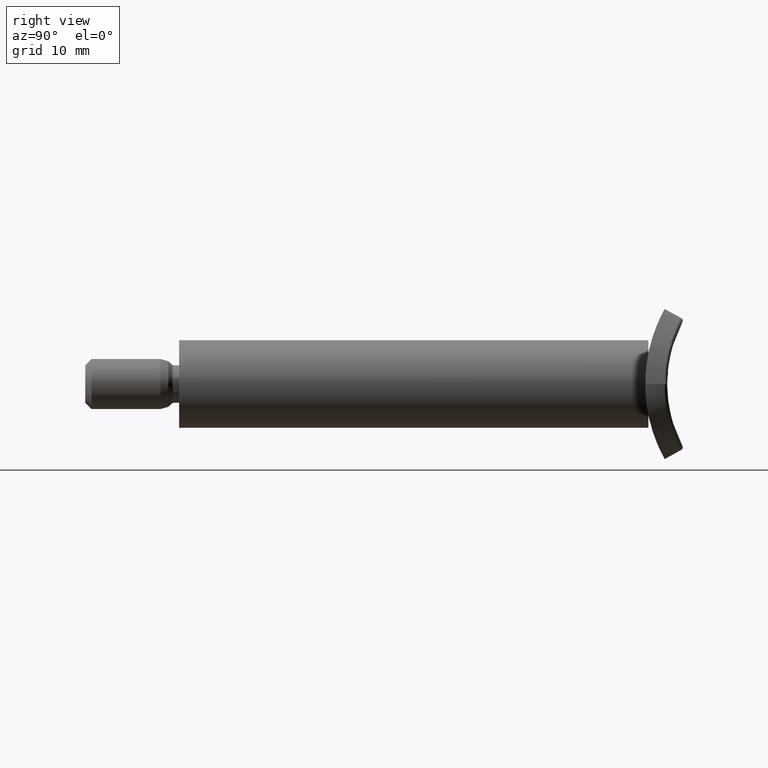
[diagram: clean part render]
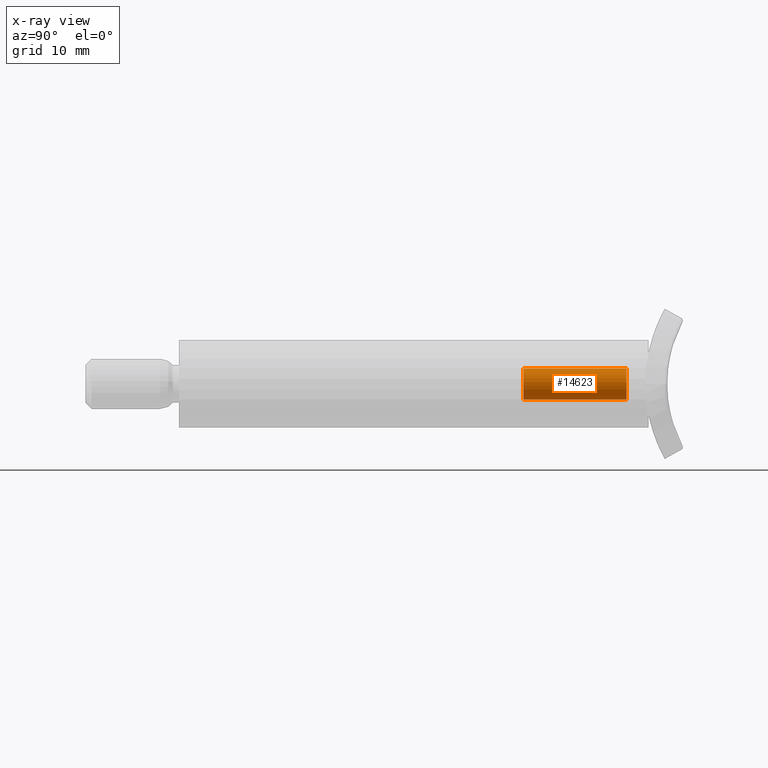
[diagram: x-ray — body ghosted, one internal face saturated and labeled with its STEP entity id]
A machine part, right view, then the same camera in x-ray: the body is ghosted and one INTERNAL B-rep face — a face not visible from any outside direction — is saturated and labeled: STEP entity #14623.
In plain terms, the highlighted cylindrical surface (bore or boss wall) has radius 2.5 mm, axis along (0, 1, 0).
Its self-contained STEP definition (entity closure, byte-faithful):
#2344 = AXIS2_PLACEMENT_3D ( 'NONE', #2419, #10513, #3597 ) ;
#2419 = CARTESIAN_POINT ( 'NONE',  ( 0.0000000000000000000, 71.50000000000000000, 0.0000000000000000000 ) ) ;
#2722 = CARTESIAN_POINT ( 'NONE',  ( 0.0000000000000000000, 75.00000000000000000, 0.0000000000000000000 ) ) ;
#2958 = FACE_OUTER_BOUND ( 'NONE', #12296, .T. ) ;
#3470 = ORIENTED_EDGE ( 'NONE', *, *, #12609, .F. ) ;
#3597 = DIRECTION ( 'NONE',  ( 0.0000000000000000000, 0.0000000000000000000, 1.000000000000000000 ) ) ;
#5526 = EDGE_LOOP ( 'NONE', ( #3470 ) ) ;
#5832 = CYLINDRICAL_SURFACE ( 'NONE', #12840, 2.499999999999992900 ) ;
#6112 = DIRECTION ( 'NONE',  ( -0.0000000000000000000, 1.000000000000000000, -0.0000000000000000000 ) ) ;
#6774 = DIRECTION ( 'NONE',  ( 0.0000000000000000000, 0.0000000000000000000, 1.000000000000000000 ) ) ;
#7793 = DIRECTION ( 'NONE',  ( -0.0000000000000000000, 1.000000000000000000, -0.0000000000000000000 ) ) ;
#7825 = FACE_OUTER_BOUND ( 'NONE', #5526, .T. ) ;
#10513 = DIRECTION ( 'NONE',  ( -0.0000000000000000000, 1.000000000000000000, -0.0000000000000000000 ) ) ;
#10856 = EDGE_CURVE ( 'NONE', #14908, #14908, #13497, .T. ) ;
#11054 = CARTESIAN_POINT ( 'NONE',  ( 0.0000000000000000000, 54.99999999999999300, 2.499999999999994700 ) ) ;
#11278 = CARTESIAN_POINT ( 'NONE',  ( 0.0000000000000000000, 54.99999999999999300, 0.0000000000000000000 ) ) ;
#11548 = AXIS2_PLACEMENT_3D ( 'NONE', #11278, #7793, #6774 ) ;
#12195 = CIRCLE ( 'NONE', #11548, 2.499999999999994700 ) ;
#12296 = EDGE_LOOP ( 'NONE', ( #12512 ) ) ;
#12512 = ORIENTED_EDGE ( 'NONE', *, *, #10856, .T. ) ;
#12609 = EDGE_CURVE ( 'NONE', #14198, #14198, #12195, .T. ) ;
#12840 = AXIS2_PLACEMENT_3D ( 'NONE', #2722, #6112, #13004 ) ;
#13004 = DIRECTION ( 'NONE',  ( 0.0000000000000000000, 0.0000000000000000000, 1.000000000000000000 ) ) ;
#13497 = CIRCLE ( 'NONE', #2344, 2.499999999999997300 ) ;
#14198 = VERTEX_POINT ( 'NONE', #11054 ) ;
#14575 = CARTESIAN_POINT ( 'NONE',  ( 0.0000000000000000000, 71.50000000000000000, 2.499999999999997300 ) ) ;
#14623 = ADVANCED_FACE ( 'NONE', ( #2958, #7825 ), #5832, .F. ) ;
#14908 = VERTEX_POINT ( 'NONE', #14575 ) ;